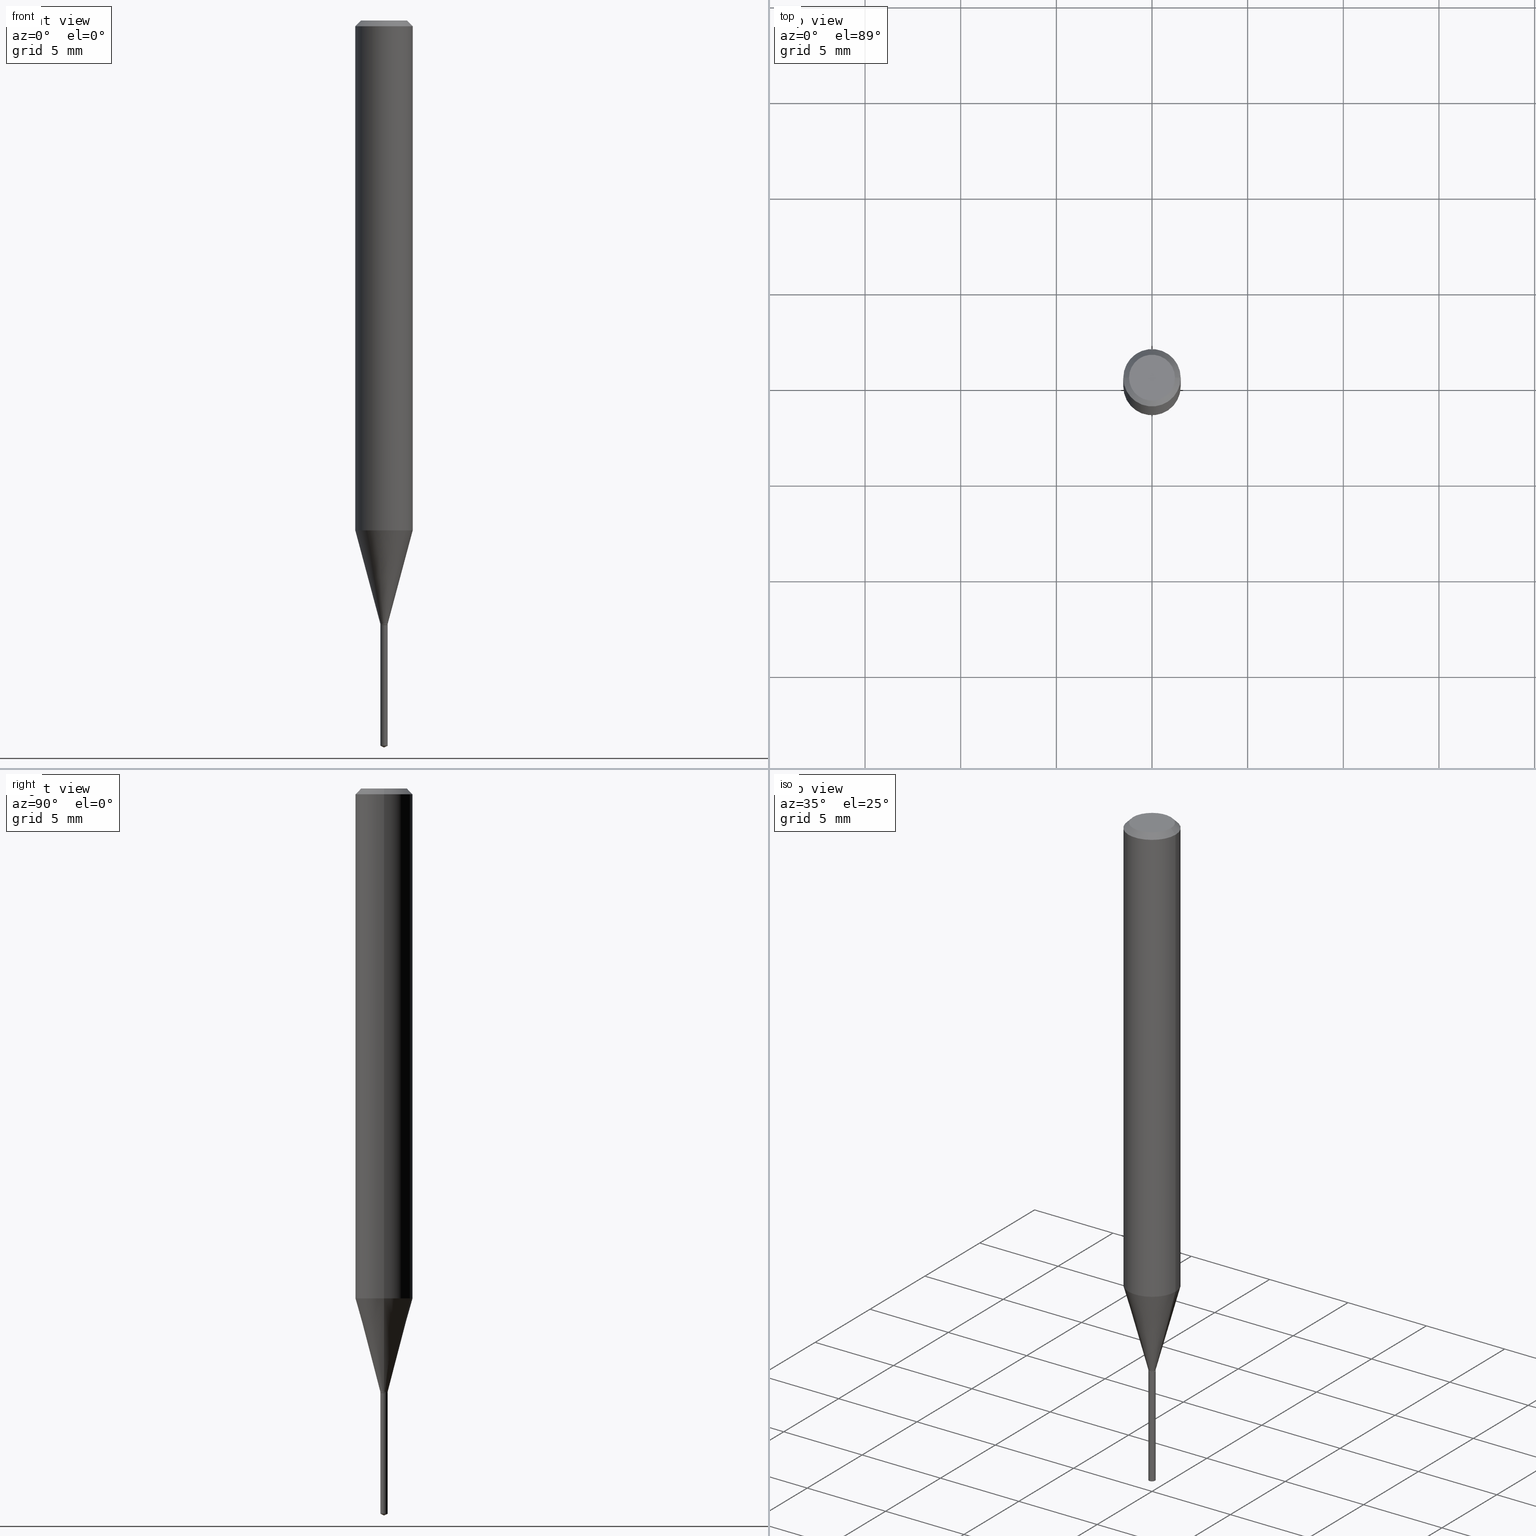
[diagram: canonical four-view strip — front | top / right | iso, engineering-drawing reading convention]
A machine part, canonical four-view strip (front | top / right | iso — engineering-drawing reading convention). The complete STEP part file that produces these views, byte-faithful:
ISO-10303-21;
HEADER;
FILE_DESCRIPTION (( 'STEP AP203' ),
    '1' );
FILE_NAME ('07413.STEP',
    '2024-04-23T21:11:20',
    ( '' ),
    ( '' ),
    'SwSTEP 2.0',
    'SolidWorks 2023',
    '' );
FILE_SCHEMA (( 'CONFIG_CONTROL_DESIGN' ));
ENDSEC;

DATA;
#1 = ORIENTED_EDGE ( 'NONE', *, *, #65, .T. ) ;
#2 = CARTESIAN_POINT ( 'NONE',  ( -9.216901474160064469E-28, 1.328816018163103804E-13, 37.87397874015748300 ) ) ;
#3 = EDGE_CURVE ( 'NONE', #22, #318, #272, .T. ) ;
#4 = AXIS2_PLACEMENT_3D ( 'NONE', #176, #329, #436 ) ;
#5 = DIRECTION ( 'NONE',  ( 1.000000000000000000, -6.982962677686205968E-15, 0.000000000000000000 ) ) ;
#6 = DIRECTION ( 'NONE',  ( 1.000000000000000000, -6.982962677686266711E-15, 0.000000000000000000 ) ) ;
#7 = CARTESIAN_POINT ( 'NONE',  ( 0.007499999999999997120, -5.237222008264698061E-17, 3.657132581846950443E-31 ) ) ;
#8 = EDGE_LOOP ( 'NONE', ( #323, #396 ) ) ;
#9 = FACE_OUTER_BOUND ( 'NONE', #442, .T. ) ;
#10 = ADVANCED_FACE ( 'NONE', ( #332 ), #227, .T. ) ;
#11 = CIRCLE ( 'NONE', #33, 0.007499999999999997120 ) ;
#12 = DIRECTION ( 'NONE',  ( 0.7071067811866169617, -2.468850131082983996E-15, 0.7071067811864780728 ) ) ;
#13 = ORIENTED_EDGE ( 'NONE', *, *, #294, .F. ) ;
#14 = DIRECTION ( 'NONE',  ( 2.433949354103484515E-29, -3.507977849870566318E-15, -1.000000000000000000 ) ) ;
#15 = AXIS2_PLACEMENT_3D ( 'NONE', #342, #69, #116 ) ;
#16 = CARTESIAN_POINT ( 'NONE',  ( 3.042407741774928155E-29, -4.343751933654757151E-15, -1.244099999999999984 ) ) ;
#17 = LINE ( 'NONE', #175, #343 ) ;
#18 = LOCAL_TIME ( 17, 11, 20.00000000000000000, #30 ) ;
#19 = ORIENTED_EDGE ( 'NONE', *, *, #398, .F. ) ;
#20 = PERSON_AND_ORGANIZATION ( #449, #64 ) ;
#21 = ORIENTED_EDGE ( 'NONE', *, *, #270, .F. ) ;
#22 = VERTEX_POINT ( 'NONE', #452 ) ;
#23 = ORIENTED_EDGE ( 'NONE', *, *, #192, .T. ) ;
#24 = ORIENTED_EDGE ( 'NONE', *, *, #87, .T. ) ;
#25 = EDGE_CURVE ( 'NONE', #401, #255, #71, .T. ) ;
#26 = CALENDAR_DATE ( 2024, 23, 4 ) ;
#27 = PERSON_AND_ORGANIZATION ( #449, #64 ) ;
#28 = VECTOR ( 'NONE', #74, 39.37007874015748143 ) ;
#29 = CARTESIAN_POINT ( 'NONE',  ( 8.265746106709734507E-48, -1.180129479067563789E-33, -3.380025165646692144E-19 ) ) ;
#30 = COORDINATED_UNIVERSAL_TIME_OFFSET ( 5, 0, .BEHIND. ) ;
#31 = VERTEX_POINT ( 'NONE', #268 ) ;
#32 = FACE_OUTER_BOUND ( 'NONE', #218, .T. ) ;
#33 = AXIS2_PLACEMENT_3D ( 'NONE', #61, #111, #101 ) ;
#34 = DIRECTION ( 'NONE',  ( -2.438088387897960049E-29, 3.491481338843145188E-15, 1.000000000000000000 ) ) ;
#35 = CARTESIAN_POINT ( 'NONE',  ( -5.237222008261657248E-17, -0.007500000000004344337, -1.244099999999999984 ) ) ;
#36 = CARTESIAN_POINT ( 'NONE',  ( -5.237222008261056358E-17, -0.007500000000005220373, -1.492602692563837374 ) ) ;
#37 = APPROVAL ( #251, 'UNSPECIFIED' ) ;
#38 = DIRECTION ( 'NONE',  ( 1.000000000000000000, -6.982962677686266711E-15, 0.000000000000000000 ) ) ;
#39 = FACE_OUTER_BOUND ( 'NONE', #441, .T. ) ;
#40 = LENGTH_MEASURE_WITH_UNIT ( LENGTH_MEASURE( 0.02539999999999999897 ), #317 );
#41 = CARTESIAN_POINT ( 'NONE',  ( 3.041185007371835914E-29, -4.342006192985336437E-15, -1.243600000000000039 ) ) ;
#42 = DIRECTION ( 'NONE',  ( -6.982962677686266711E-15, -1.000000000000000000, 3.520397390770526445E-15 ) ) ;
#43 = DIRECTION ( 'NONE',  ( 1.000000000000000000, -6.982962677686205968E-15, 0.000000000000000000 ) ) ;
#44 = DIRECTION ( 'NONE',  ( 1.000000000000000000, -6.982962677686266711E-15, 4.876185090822587894E-29 ) ) ;
#45 = VECTOR ( 'NONE', #380, 39.37007874015748143 ) ;
#46 = CONICAL_SURFACE ( 'NONE', #157, 0.05904999999999999832, 0.7853981633974452814 ) ;
#47 = ORIENTED_EDGE ( 'NONE', *, *, #201, .F. ) ;
#48 = VERTEX_POINT ( 'NONE', #371 ) ;
#49 = ORIENTED_EDGE ( 'NONE', *, *, #25, .F. ) ;
#50 = EDGE_CURVE ( 'NONE', #318, #22, #248, .T. ) ;
#51 = ORIENTED_EDGE ( 'NONE', *, *, #65, .F. ) ;
#52 = EDGE_LOOP ( 'NONE', ( #217, #89, #107, #124 ) ) ;
#53 = CC_DESIGN_DATE_AND_TIME_ASSIGNMENT ( #397, #103, ( #149 ) ) ;
#54 = AXIS2_PLACEMENT_3D ( 'NONE', #474, #281, #43 ) ;
#55 = DATE_TIME_ROLE ( 'classification_date' ) ;
#56 = ORIENTED_EDGE ( 'NONE', *, *, #487, .T. ) ;
#57 = EDGE_CURVE ( 'NONE', #478, #399, #309, .T. ) ;
#58 = CALENDAR_DATE ( 2024, 23, 4 ) ;
#59 = APPLICATION_CONTEXT ( 'configuration controlled 3d designs of mechanical parts and assemblies' ) ;
#60 = VECTOR ( 'NONE', #435, 39.37007874015748854 ) ;
#61 = CARTESIAN_POINT ( 'NONE',  ( 3.036783163520702277E-29, -4.335721526575417446E-15, -1.241799999999999793 ) ) ;
#62 = CC_DESIGN_PERSON_AND_ORGANIZATION_ASSIGNMENT ( #85, #382, ( #461 ) ) ;
#63 = FACE_OUTER_BOUND ( 'NONE', #52, .T. ) ;
#64 = ORGANIZATION ( 'UNSPECIFIED', 'UNSPECIFIED', '' ) ;
#65 = EDGE_CURVE ( 'NONE', #472, #31, #422, .T. ) ;
#66 = DIRECTION ( 'NONE',  ( -2.445468806185136597E-29, 3.491481338843145583E-15, 1.000000000000000000 ) ) ;
#67 = CIRCLE ( 'NONE', #106, 0.05904999999999999832 ) ;
#68 = ADVANCED_FACE ( 'NONE', ( #147 ), #303, .T. ) ;
#69 = DIRECTION ( 'NONE',  ( -2.433949354103485076E-29, 3.507977849870565923E-15, 1.000000000000000000 ) ) ;
#70 = DIRECTION ( 'NONE',  ( -2.445468806185136597E-29, 3.491481338843145583E-15, 1.000000000000000000 ) ) ;
#71 = LINE ( 'NONE', #148, #414 ) ;
#72 = CARTESIAN_POINT ( 'NONE',  ( 2.888098660104663766E-31, -4.123439461173779647E-17, -0.01181000000000007044 ) ) ;
#73 = EDGE_CURVE ( 'NONE', #352, #480, #451, .T. ) ;
#74 = DIRECTION ( 'NONE',  ( -2.433949354103485076E-29, 3.507977849870566318E-15, 1.000000000000000000 ) ) ;
#75 = DIRECTION ( 'NONE',  ( -2.445468806185136597E-29, 3.491481338843145583E-15, 1.000000000000000000 ) ) ;
#76 = MANIFOLD_SOLID_BREP ( 'Body-Move/Copy2[1]', #137 ) ;
#77 = AXIS2_PLACEMENT_3D ( 'NONE', #162, #243, #427 ) ;
#78 = FACE_OUTER_BOUND ( 'NONE', #159, .T. ) ;
#79 = CYLINDRICAL_SURFACE ( 'NONE', #77, 0.007500000000000002325 ) ;
#80 = ORIENTED_EDGE ( 'NONE', *, *, #275, .F. ) ;
#81 = EDGE_LOOP ( 'NONE', ( #393, #277, #139, #169 ) ) ;
#82 = CARTESIAN_POINT ( 'NONE',  ( 3.041185007371835914E-29, -4.342006192985336437E-15, -1.243600000000000039 ) ) ;
#83 = AXIS2_PLACEMENT_3D ( 'NONE', #82, #125, #344 ) ;
#84 =( CONVERSION_BASED_UNIT ( 'INCH', #40 ) LENGTH_UNIT ( ) NAMED_UNIT ( #308 ) );
#85 = PERSON_AND_ORGANIZATION ( #449, #64 ) ;
#86 = CIRCLE ( 'NONE', #488, 0.04724000000000000421 ) ;
#87 = EDGE_CURVE ( 'NONE', #215, #203, #113, .T. ) ;
#88 = ORIENTED_EDGE ( 'NONE', *, *, #87, .F. ) ;
#89 = ORIENTED_EDGE ( 'NONE', *, *, #485, .T. ) ;
#90 = APPLICATION_PROTOCOL_DEFINITION ( 'international standard', 'config_control_design', 1994, #59 ) ;
#91 = ORIENTED_EDGE ( 'NONE', *, *, #275, .T. ) ;
#92 = DIRECTION ( 'NONE',  ( 0.2588190451025212391, 1.565188264969622362E-15, 0.9659258262890679791 ) ) ;
#93 = EDGE_CURVE ( 'NONE', #480, #472, #120, .T. ) ;
#94 = DATE_AND_TIME ( #220, #165 ) ;
#95 = VERTEX_POINT ( 'NONE', #490 ) ;
#96 = COORDINATED_UNIVERSAL_TIME_OFFSET ( 5, 0, .BEHIND. ) ;
#97 = CIRCLE ( 'NONE', #288, 0.007499999999999997120 ) ;
#98 = ORIENTED_EDGE ( 'NONE', *, *, #388, .F. ) ;
#99 = CARTESIAN_POINT ( 'NONE',  ( 4.132873053354867254E-48, -5.900647395337818946E-34, -1.690012582823346072E-19 ) ) ;
#100 = COORDINATED_UNIVERSAL_TIME_OFFSET ( 5, 0, .BEHIND. ) ;
#101 = DIRECTION ( 'NONE',  ( 1.000000000000000000, -6.982962677686205968E-15, 0.000000000000000000 ) ) ;
#102 = CC_DESIGN_APPROVAL ( #453, ( #149 ) ) ;
#103 = DATE_TIME_ROLE ( 'creation_date' ) ;
#104 = DIRECTION ( 'NONE',  ( 1.000000000000000000, -6.982962677686333764E-15, 0.000000000000000000 ) ) ;
#105 = DIRECTION ( 'NONE',  ( -1.000000000000000000, 6.982962677686266711E-15, 0.000000000000000000 ) ) ;
#106 = AXIS2_PLACEMENT_3D ( 'NONE', #144, #231, #306 ) ;
#107 = ORIENTED_EDGE ( 'NONE', *, *, #388, .T. ) ;
#108 = DIRECTION ( 'NONE',  ( -2.433949354103485076E-29, 3.507977849870565923E-15, 1.000000000000000000 ) ) ;
#109 = DIRECTION ( 'NONE',  ( -2.445468806185136877E-29, 3.491481338843145188E-15, 1.000000000000000000 ) ) ;
#110 = ADVANCED_FACE ( 'NONE', ( #262 ), #79, .T. ) ;
#111 = DIRECTION ( 'NONE',  ( -2.445468806185136597E-29, 3.491481338843145583E-15, 1.000000000000000000 ) ) ;
#112 = CARTESIAN_POINT ( 'NONE',  ( -0.007499999999999997120, -4.285573154598369775E-15, -1.243600000000000039 ) ) ;
#113 = LINE ( 'NONE', #403, #28 ) ;
#114 = DIRECTION ( 'NONE',  ( 6.439704144417005898E-15, 0.9063077870366488265, 0.4226182617407018838 ) ) ;
#115 = CIRCLE ( 'NONE', #379, 0.04724000000000000421 ) ;
#116 = DIRECTION ( 'NONE',  ( -6.982962677686265922E-15, -1.000000000000000000, 0.000000000000000000 ) ) ;
#117 = CIRCLE ( 'NONE', #54, 0.007499999999999997120 ) ;
#118 = DIRECTION ( 'NONE',  ( -2.445468806185136597E-29, 3.491481338843145583E-15, 1.000000000000000000 ) ) ;
#119 = CARTESIAN_POINT ( 'NONE',  ( 3.042407741774928155E-29, -4.343751933654757151E-15, -1.244099999999999984 ) ) ;
#120 = LINE ( 'NONE', #195, #60 ) ;
#121 = CARTESIAN_POINT ( 'NONE',  ( -0.05904999999999999832, 3.711095515056362547E-16, -0.01181000000000007044 ) ) ;
#122 = CONICAL_SURFACE ( 'NONE', #154, 0.007499999999999997120, 0.2617993877991499629 ) ;
#123 = DIRECTION ( 'NONE',  ( -2.433949354103485076E-29, 3.507977849870565923E-15, 1.000000000000000000 ) ) ;
#124 = ORIENTED_EDGE ( 'NONE', *, *, #423, .F. ) ;
#125 = DIRECTION ( 'NONE',  ( -2.445468806185136597E-29, 3.491481338843145583E-15, 1.000000000000000000 ) ) ;
#126 = ORIENTED_EDGE ( 'NONE', *, *, #130, .T. ) ;
#127 = DIRECTION ( 'NONE',  ( -2.433949354103485076E-29, 3.507977849870565923E-15, 1.000000000000000000 ) ) ;
#128 = ORIENTED_EDGE ( 'NONE', *, *, #50, .F. ) ;
#129 = AXIS2_PLACEMENT_3D ( 'NONE', #224, #362, #105 ) ;
#130 = EDGE_CURVE ( 'NONE', #31, #399, #17, .T. ) ;
#131 = ORIENTED_EDGE ( 'NONE', *, *, #166, .T. ) ;
#132 = APPROVAL_STATUS ( 'not_yet_approved' ) ;
#133 = ORIENTED_EDGE ( 'NONE', *, *, #57, .T. ) ;
#134 = CARTESIAN_POINT ( 'NONE',  ( 3.042407741774928155E-29, -4.343751933654757151E-15, -1.244099999999999984 ) ) ;
#135 = APPROVAL_DATE_TIME ( #254, #37 ) ;
#136 = ADVANCED_FACE ( 'NONE', ( #172 ), #307, .T. ) ;
#137 = CLOSED_SHELL ( 'NONE', ( #475, #458, #406, #110, #408 ) ) ;
#138 = APPROVAL_ROLE ( '' ) ;
#139 = ORIENTED_EDGE ( 'NONE', *, *, #366, .T. ) ;
#140 = AXIS2_PLACEMENT_3D ( 'NONE', #164, #286, #429 ) ;
#141 = COORDINATED_UNIVERSAL_TIME_OFFSET ( 5, 0, .BEHIND. ) ;
#142 = DIRECTION ( 'NONE',  ( -2.445468806185136877E-29, 3.491481338843145188E-15, 1.000000000000000000 ) ) ;
#143 = ORIENTED_EDGE ( 'NONE', *, *, #130, .F. ) ;
#144 = CARTESIAN_POINT ( 'NONE',  ( 2.888098660104663766E-31, -4.123439461173779647E-17, -0.01181000000000007044 ) ) ;
#145 = AXIS2_PLACEMENT_3D ( 'NONE', #454, #466, #415 ) ;
#146 = FACE_OUTER_BOUND ( 'NONE', #355, .T. ) ;
#147 = FACE_OUTER_BOUND ( 'NONE', #171, .T. ) ;
#148 = CARTESIAN_POINT ( 'NONE',  ( -5.237222008261659097E-17, -0.007500000000004346072, -1.244099999999999984 ) ) ;
#150 = DIRECTION ( 'NONE',  ( -2.445468806185136877E-29, 3.491481338843145188E-15, 1.000000000000000000 ) ) ;
#149 = PRODUCT_DEFINITION ( 'UNKNOWN', '', #358, #264 ) ;
#151 = LINE ( 'NONE', #392, #265 ) ;
#152 = DIRECTION ( 'NONE',  ( 1.000000000000000000, -6.982962677686266711E-15, 4.876176775795935793E-29 ) ) ;
#153 = ORIENTED_EDGE ( 'NONE', *, *, #274, .F. ) ;
#154 = AXIS2_PLACEMENT_3D ( 'NONE', #459, #75, #5 ) ;
#155 = AXIS2_PLACEMENT_3D ( 'NONE', #250, #285, #241 ) ;
#156 = CARTESIAN_POINT ( 'NONE',  ( 3.647250709833657186E-29, -5.215493874801893325E-15, -1.492602692563837374 ) ) ;
#157 = AXIS2_PLACEMENT_3D ( 'NONE', #470, #247, #467 ) ;
#158 = EDGE_CURVE ( 'NONE', #351, #478, #115, .T. ) ;
#159 = EDGE_LOOP ( 'NONE', ( #242, #328, #238, #51 ) ) ;
#160 = AXIS2_PLACEMENT_3D ( 'NONE', #245, #70, #6 ) ;
#161 = FACE_OUTER_BOUND ( 'NONE', #319, .T. ) ;
#162 = CARTESIAN_POINT ( 'NONE',  ( 3.042407741774928155E-29, -4.343751933654757151E-15, -1.244099999999999984 ) ) ;
#163 = CC_DESIGN_DATE_AND_TIME_ASSIGNMENT ( #94, #55, ( #416 ) ) ;
#164 = CARTESIAN_POINT ( 'NONE',  ( 0.000000000000000000, 0.000000000000000000, 0.000000000000000000 ) ) ;
#165 = LOCAL_TIME ( 17, 11, 20.00000000000000000, #100 ) ;
#166 = EDGE_CURVE ( 'NONE', #472, #448, #213, .T. ) ;
#167 =( NAMED_UNIT ( * ) PLANE_ANGLE_UNIT ( ) SI_UNIT ( $, .RADIAN. ) );
#168 = CARTESIAN_POINT ( 'NONE',  ( -0.05905000000000006077, 4.195754854663395916E-16, -2.904631170795524694E-30 ) ) ;
#169 = ORIENTED_EDGE ( 'NONE', *, *, #485, .F. ) ;
#170 = APPROVAL_ROLE ( '' ) ;
#171 = EDGE_LOOP ( 'NONE', ( #23, #131, #354, #143 ) ) ;
#172 = FACE_OUTER_BOUND ( 'NONE', #81, .T. ) ;
#173 = ORIENTED_EDGE ( 'NONE', *, *, #197, .F. ) ;
#174 = ORIENTED_EDGE ( 'NONE', *, *, #289, .F. ) ;
#175 = CARTESIAN_POINT ( 'NONE',  ( 0.05905000000000006077, -4.123439461173744764E-16, 2.879382386107503023E-30 ) ) ;
#176 = CARTESIAN_POINT ( 'NONE',  ( 2.566306220429153348E-29, -3.664005141150482080E-15, -1.049412780869824147 ) ) ;
#177 = PERSON_AND_ORGANIZATION_ROLE ( 'design_supplier' ) ;
#178 = DIRECTION ( 'NONE',  ( -2.445468806185136597E-29, 3.491481338843145583E-15, 1.000000000000000000 ) ) ;
#179 = ORIENTED_EDGE ( 'NONE', *, *, #366, .F. ) ;
#180 = AXIS2_PLACEMENT_3D ( 'NONE', #360, #178, #104 ) ;
#181 = SECURITY_CLASSIFICATION_LEVEL ( 'unclassified' ) ;
#182 = ORIENTED_EDGE ( 'NONE', *, *, #158, .F. ) ;
#183 =( GEOMETRIC_REPRESENTATION_CONTEXT ( 3 ) GLOBAL_UNCERTAINTY_ASSIGNED_CONTEXT ( ( #333 ) ) GLOBAL_UNIT_ASSIGNED_CONTEXT ( ( #84, #167, #200 ) ) REPRESENTATION_CONTEXT ( 'NONE', 'WORKASPACE' ) );
#184 = ADVANCED_FACE ( 'NONE', ( #447 ), #216, .T. ) ;
#185 = DIRECTION ( 'NONE',  ( -2.445468806185136597E-29, 3.491481338843145583E-15, 1.000000000000000000 ) ) ;
#186 = DIRECTION ( 'NONE',  ( -6.982962677686266711E-15, -1.000000000000000000, 3.520397390770526445E-15 ) ) ;
#187 = VECTOR ( 'NONE', #142, 39.37007874015748143 ) ;
#188 = DIRECTION ( 'NONE',  ( 1.000000000000000000, -6.982962677686265922E-15, 4.876176775795935793E-29 ) ) ;
#189 = CARTESIAN_POINT ( 'NONE',  ( 3.042407741774928155E-29, -4.343751933654757151E-15, -1.244099999999999984 ) ) ;
#190 = CARTESIAN_POINT ( 'NONE',  ( 0.000000000000000000, 0.000000000000000000, 0.000000000000000000 ) ) ;
#191 = APPROVAL_PERSON_ORGANIZATION ( #357, #37, #298 ) ;
#192 = EDGE_CURVE ( 'NONE', #31, #472, #404, .T. ) ;
#193 = DIRECTION ( 'NONE',  ( 1.000000000000000000, -6.982962677686333764E-15, 0.000000000000000000 ) ) ;
#194 = PLANE ( 'NONE',  #327 ) ;
#195 = CARTESIAN_POINT ( 'NONE',  ( -0.007499999999999997120, -4.282430821393410279E-15, -1.241799999999999793 ) ) ;
#196 = VECTOR ( 'NONE', #340, 39.37007874015748143 ) ;
#197 = EDGE_CURVE ( 'NONE', #345, #401, #325, .T. ) ;
#198 = MECHANICAL_CONTEXT ( 'NONE', #59, 'mechanical' ) ;
#199 = VECTOR ( 'NONE', #205, 39.37007874015748143 ) ;
#200 =( NAMED_UNIT ( * ) SI_UNIT ( $, .STERADIAN. ) SOLID_ANGLE_UNIT ( ) );
#201 = EDGE_CURVE ( 'NONE', #48, #31, #151, .T. ) ;
#202 = AXIS2_PLACEMENT_3D ( 'NONE', #16, #127, #311 ) ;
#203 = VERTEX_POINT ( 'NONE', #321 ) ;
#204 = ORIENTED_EDGE ( 'NONE', *, *, #398, .T. ) ;
#205 = DIRECTION ( 'NONE',  ( 0.7071067811865453523, -7.319954787623248157E-15, -0.7071067811865496822 ) ) ;
#206 = APPLICATION_PROTOCOL_DEFINITION ( 'international standard', 'config_control_design', 1994, #446 ) ;
#207 = CC_DESIGN_PERSON_AND_ORGANIZATION_ASSIGNMENT ( #439, #177, ( #358 ) ) ;
#208 = VECTOR ( 'NONE', #114, 39.37007874015748143 ) ;
#209 = AXIS2_PLACEMENT_3D ( 'NONE', #221, #489, #484 ) ;
#210 = CONICAL_SURFACE ( 'NONE', #465, 84.42940631927260142, 1.134464013796308013 ) ;
#211 = CARTESIAN_POINT ( 'NONE',  ( 3.641431628674223535E-29, -5.248285661191353441E-15, -1.496099999999999985 ) ) ;
#212 = FACE_OUTER_BOUND ( 'NONE', #428, .T. ) ;
#213 = LINE ( 'NONE', #168, #187 ) ;
#214 = DATE_AND_TIME ( #225, #296 ) ;
#215 = VERTEX_POINT ( 'NONE', #324 ) ;
#216 = CONICAL_SURFACE ( 'NONE', #129, 0.05904999999999999832, 0.7853981633974452814 ) ;
#217 = ORIENTED_EDGE ( 'NONE', *, *, #73, .F. ) ;
#218 = EDGE_LOOP ( 'NONE', ( #128, #421 ) ) ;
#219 = ADVANCED_FACE ( 'NONE', ( #365 ), #230, .F. ) ;
#220 = CALENDAR_DATE ( 2024, 23, 4 ) ;
#221 = CARTESIAN_POINT ( 'NONE',  ( 3.042407741774928155E-29, -4.343751933654757151E-15, -1.244099999999999984 ) ) ;
#222 = DIRECTION ( 'NONE',  ( -2.445468806185136877E-29, 3.491481338843145188E-15, 1.000000000000000000 ) ) ;
#223 = EDGE_CURVE ( 'NONE', #478, #351, #86, .T. ) ;
#224 = CARTESIAN_POINT ( 'NONE',  ( 2.888098660104663766E-31, -4.123439461173779647E-17, -0.01181000000000007044 ) ) ;
#225 = CALENDAR_DATE ( 2024, 23, 4 ) ;
#226 = AXIS2_PLACEMENT_3D ( 'NONE', #72, #369, #38 ) ;
#227 = CONICAL_SURFACE ( 'NONE', #180, 0.006999999999999999278, 0.7853981633975465337 ) ;
#228 = ORIENTED_EDGE ( 'NONE', *, *, #50, .T. ) ;
#229 = CARTESIAN_POINT ( 'NONE',  ( -0.04724000000000000421, 3.504923541997677355E-16, -3.380025165670481712E-19 ) ) ;
#230 = PLANE ( 'NONE',  #283 ) ;
#231 = DIRECTION ( 'NONE',  ( -2.445468806185136597E-29, 3.491481338843145583E-15, 1.000000000000000000 ) ) ;
#232 = PRODUCT_DEFINITION_SHAPE ( 'NONE', 'NONE',  #149 ) ;
#233 = CIRCLE ( 'NONE', #15, 0.007499999999999999722 ) ;
#234 = DIRECTION ( 'NONE',  ( -2.445468806185136597E-29, 3.491481338843145583E-15, 1.000000000000000000 ) ) ;
#235 = CARTESIAN_POINT ( 'NONE',  ( 0.006999999999999999278, -4.392632672398561618E-15, -1.244099999999999984 ) ) ;
#236 = ADVANCED_BREP_SHAPE_REPRESENTATION ( '07413', ( #76, #410, #140 ), #183 ) ;
#237 = LINE ( 'NONE', #367, #208 ) ;
#238 = ORIENTED_EDGE ( 'NONE', *, *, #201, .T. ) ;
#239 = CARTESIAN_POINT ( 'NONE',  ( 0.000000000000000000, 0.000000000000000000, 0.000000000000000000 ) ) ;
#240 = CIRCLE ( 'NONE', #145, 0.007499999999999999722 ) ;
#241 = DIRECTION ( 'NONE',  ( 1.000000000000000000, -6.982962677686205968E-15, 0.000000000000000000 ) ) ;
#242 = ORIENTED_EDGE ( 'NONE', *, *, #93, .F. ) ;
#243 = DIRECTION ( 'NONE',  ( -2.433949354103485076E-29, 3.507977849870565923E-15, 1.000000000000000000 ) ) ;
#244 = LINE ( 'NONE', #315, #45 ) ;
#245 = CARTESIAN_POINT ( 'NONE',  ( 2.566306220429153348E-29, -3.664005141150482080E-15, -1.049412780869824147 ) ) ;
#246 = CIRCLE ( 'NONE', #338, 0.007500000000000004059 ) ;
#247 = DIRECTION ( 'NONE',  ( 2.445468806185136597E-29, -3.491481338843145583E-15, -1.000000000000000000 ) ) ;
#248 = CIRCLE ( 'NONE', #407, 0.006999999999999999278 ) ;
#249 = ORIENTED_EDGE ( 'NONE', *, *, #289, .T. ) ;
#250 = CARTESIAN_POINT ( 'NONE',  ( 3.036783163520702277E-29, -4.335721526575417446E-15, -1.241799999999999793 ) ) ;
#251 = APPROVAL_STATUS ( 'not_yet_approved' ) ;
#252 = EDGE_LOOP ( 'NONE', ( #91, #445, #21, #98 ) ) ;
#253 = PERSON_AND_ORGANIZATION_ROLE ( 'creator' ) ;
#254 = DATE_AND_TIME ( #26, #444 ) ;
#255 = VERTEX_POINT ( 'NONE', #35 ) ;
#256 = CC_DESIGN_PERSON_AND_ORGANIZATION_ASSIGNMENT ( #295, #481, ( #416 ) ) ;
#257 = ORIENTED_EDGE ( 'NONE', *, *, #25, .T. ) ;
#258 = DIRECTION ( 'NONE',  ( -1.000000000000000000, 6.982962677686265922E-15, -4.876176775795935793E-29 ) ) ;
#259 = CC_DESIGN_SECURITY_CLASSIFICATION ( #416, ( #358 ) ) ;
#260 = PERSON_AND_ORGANIZATION ( #449, #64 ) ;
#261 = CONICAL_SURFACE ( 'NONE', #469, 84.42940631927260142, 1.134464013796308013 ) ;
#262 = FACE_OUTER_BOUND ( 'NONE', #292, .T. ) ;
#263 = CARTESIAN_POINT ( 'NONE',  ( -0.007499999999999997120, 5.329070518200749348E-17, -3.689201317691177953E-31 ) ) ;
#264 = DESIGN_CONTEXT ( 'detailed design', #446, 'design' ) ;
#265 = VECTOR ( 'NONE', #92, 39.37007874015748854 ) ;
#266 = LINE ( 'NONE', #121, #196 ) ;
#267 = DIRECTION ( 'NONE',  ( 1.000000000000000000, -6.982962677686266711E-15, 4.876176775795935793E-29 ) ) ;
#268 = CARTESIAN_POINT ( 'NONE',  ( 0.05905000000000011628, -4.076349087267857001E-15, -1.049412780869824147 ) ) ;
#269 = DIRECTION ( 'NONE',  ( -6.982962677686265922E-15, -1.000000000000000000, 0.000000000000000000 ) ) ;
#270 = EDGE_CURVE ( 'NONE', #48, #480, #11, .T. ) ;
#271 = CARTESIAN_POINT ( 'NONE',  ( 0.000000000000000000, 0.000000000000000000, 0.000000000000000000 ) ) ;
#272 = CIRCLE ( 'NONE', #209, 0.006999999999999999278 ) ;
#273 = CIRCLE ( 'NONE', #226, 0.05904999999999999832 ) ;
#274 = EDGE_CURVE ( 'NONE', #351, #448, #266, .T. ) ;
#275 = EDGE_CURVE ( 'NONE', #95, #352, #97, .T. ) ;
#276 = CYLINDRICAL_SURFACE ( 'NONE', #413, 0.05905000000000006077 ) ;
#277 = ORIENTED_EDGE ( 'NONE', *, *, #3, .T. ) ;
#278 = DIRECTION ( 'NONE',  ( -6.328713451373349657E-15, -0.9063077870366458288, 0.4226182617407081565 ) ) ;
#279 = EDGE_CURVE ( 'NONE', #215, #401, #479, .T. ) ;
#280 = CARTESIAN_POINT ( 'NONE',  ( 3.647250709833657186E-29, -5.215493874801893325E-15, -1.492602692563837374 ) ) ;
#281 = DIRECTION ( 'NONE',  ( -2.445468806185136597E-29, 3.491481338843145583E-15, 1.000000000000000000 ) ) ;
#282 = ORIENTED_EDGE ( 'NONE', *, *, #279, .F. ) ;
#283 = AXIS2_PLACEMENT_3D ( 'NONE', #99, #368, #258 ) ;
#284 = FACE_OUTER_BOUND ( 'NONE', #390, .T. ) ;
#285 = DIRECTION ( 'NONE',  ( -2.445468806185136597E-29, 3.491481338843145583E-15, 1.000000000000000000 ) ) ;
#286 = DIRECTION ( 'NONE',  ( 0.000000000000000000, 0.000000000000000000, 1.000000000000000000 ) ) ;
#287 = ORIENTED_EDGE ( 'NONE', *, *, #375, .T. ) ;
#288 = AXIS2_PLACEMENT_3D ( 'NONE', #41, #419, #339 ) ;
#289 = EDGE_CURVE ( 'NONE', #448, #399, #67, .T. ) ;
#290 = COORDINATED_UNIVERSAL_TIME_OFFSET ( 5, 0, .BEHIND. ) ;
#291 = ORIENTED_EDGE ( 'NONE', *, *, #166, .F. ) ;
#292 = EDGE_LOOP ( 'NONE', ( #88, #326, #257, #19 ) ) ;
#293 = CC_DESIGN_PERSON_AND_ORGANIZATION_ASSIGNMENT ( #27, #253, ( #358 ) ) ;
#294 = EDGE_CURVE ( 'NONE', #255, #203, #240, .T. ) ;
#295 = PERSON_AND_ORGANIZATION ( #449, #64 ) ;
#296 = LOCAL_TIME ( 17, 11, 20.00000000000000000, #290 ) ;
#297 = ADVANCED_FACE ( 'NONE', ( #63 ), #450, .T. ) ;
#298 = APPROVAL_ROLE ( '' ) ;
#299 = DIRECTION ( 'NONE',  ( -2.433949354103485076E-29, 3.507977849870565923E-15, 1.000000000000000000 ) ) ;
#300 = AXIS2_PLACEMENT_3D ( 'NONE', #455, #185, #464 ) ;
#301 = CLOSED_SHELL ( 'NONE', ( #10, #443, #68, #330, #383, #297, #468, #402, #184, #219, #384, #136 ) ) ;
#302 = CARTESIAN_POINT ( 'NONE',  ( 3.641431628674223535E-29, -5.248285661191353441E-15, -1.496099999999999985 ) ) ;
#303 = CYLINDRICAL_SURFACE ( 'NONE', #300, 0.05905000000000006077 ) ;
#304 = DIRECTION ( 'NONE',  ( -2.433949354103485076E-29, 3.507977849870566318E-15, 1.000000000000000000 ) ) ;
#305 = DIRECTION ( 'NONE',  ( -6.982962677686265922E-15, -1.000000000000000000, 0.000000000000000000 ) ) ;
#306 = DIRECTION ( 'NONE',  ( 1.000000000000000000, -6.982962677686266711E-15, 0.000000000000000000 ) ) ;
#307 = CONICAL_SURFACE ( 'NONE', #353, 0.006999999999999999278, 0.7853981633975465337 ) ;
#308 = DIMENSIONAL_EXPONENTS ( 1.000000000000000000, 0.000000000000000000, 0.000000000000000000, 0.000000000000000000, 0.000000000000000000, 0.000000000000000000, 0.000000000000000000 ) ;
#309 = LINE ( 'NONE', #418, #199 ) ;
#310 = CARTESIAN_POINT ( 'NONE',  ( 0.05904999999999999832, -4.535783407291118600E-16, -0.01181000000000007044 ) ) ;
#311 = DIRECTION ( 'NONE',  ( -6.982962677686265922E-15, -1.000000000000000000, 0.000000000000000000 ) ) ;
#312 = CARTESIAN_POINT ( 'NONE',  ( 0.04724000000000000421, -3.852183633974369345E-16, -3.380025165621689721E-19 ) ) ;
#313 = ORIENTED_EDGE ( 'NONE', *, *, #294, .T. ) ;
#314 = ORIENTED_EDGE ( 'NONE', *, *, #223, .F. ) ;
#315 = CARTESIAN_POINT ( 'NONE',  ( -0.006999999999999999278, -4.294013942151550094E-15, -1.244099999999999984 ) ) ;
#316 = CARTESIAN_POINT ( 'NONE',  ( -0.05905000000000011628, -3.244429655684142193E-15, -1.049412780869824147 ) ) ;
#317 =( LENGTH_UNIT ( ) NAMED_UNIT ( * ) SI_UNIT ( $, .METRE. ) );
#318 = VERTEX_POINT ( 'NONE', #335 ) ;
#319 = EDGE_LOOP ( 'NONE', ( #173, #395, #473 ) ) ;
#320 = DATE_AND_TIME ( #58, #349 ) ;
#321 = CARTESIAN_POINT ( 'NONE',  ( 5.329070518204405225E-17, 0.007499999999995655975, -1.244099999999999984 ) ) ;
#322 = ORIENTED_EDGE ( 'NONE', *, *, #274, .T. ) ;
#323 = ORIENTED_EDGE ( 'NONE', *, *, #158, .T. ) ;
#324 = CARTESIAN_POINT ( 'NONE',  ( 5.329070518204401527E-17, 0.007499999999994790348, -1.492602692563837374 ) ) ;
#325 = LINE ( 'NONE', #211, #462 ) ;
#326 = ORIENTED_EDGE ( 'NONE', *, *, #279, .T. ) ;
#327 = AXIS2_PLACEMENT_3D ( 'NONE', #412, #34, #188 ) ;
#328 = ORIENTED_EDGE ( 'NONE', *, *, #423, .T. ) ;
#329 = DIRECTION ( 'NONE',  ( -2.445468806185136597E-29, 3.491481338843145583E-15, 1.000000000000000000 ) ) ;
#330 = ADVANCED_FACE ( 'NONE', ( #146 ), #122, .T. ) ;
#331 = APPROVAL_STATUS ( 'not_yet_approved' ) ;
#332 = FACE_OUTER_BOUND ( 'NONE', #334, .T. ) ;
#333 = UNCERTAINTY_MEASURE_WITH_UNIT (LENGTH_MEASURE( 1.000000000000000082E-05 ), #84, 'distance_accuracy_value', 'NONE');
#334 = EDGE_LOOP ( 'NONE', ( #228, #56, #80, #179 ) ) ;
#335 = CARTESIAN_POINT ( 'NONE',  ( 0.006999999999999999278, -4.392632672398561618E-15, -1.244099999999999984 ) ) ;
#336 = EDGE_CURVE ( 'NONE', #345, #215, #237, .T. ) ;
#337 = FACE_OUTER_BOUND ( 'NONE', #389, .T. ) ;
#338 = AXIS2_PLACEMENT_3D ( 'NONE', #156, #108, #305 ) ;
#339 = DIRECTION ( 'NONE',  ( 1.000000000000000000, -6.982962677686270655E-15, 0.000000000000000000 ) ) ;
#340 = DIRECTION ( 'NONE',  ( -0.7071067811865453523, 2.468850131082234184E-15, -0.7071067811865496822 ) ) ;
#341 = LINE ( 'NONE', #7, #471 ) ;
#342 = CARTESIAN_POINT ( 'NONE',  ( 3.042407741774928155E-29, -4.343751933654757151E-15, -1.244099999999999984 ) ) ;
#343 = VECTOR ( 'NONE', #222, 39.37007874015748143 ) ;
#344 = DIRECTION ( 'NONE',  ( 1.000000000000000000, -6.982962677686270655E-15, 0.000000000000000000 ) ) ;
#345 = VERTEX_POINT ( 'NONE', #302 ) ;
#346 = CYLINDRICAL_SURFACE ( 'NONE', #202, 0.007500000000000002325 ) ;
#347 = PRODUCT_RELATED_PRODUCT_CATEGORY ( 'detail', '', ( #461 ) ) ;
#348 = ORIENTED_EDGE ( 'NONE', *, *, #192, .F. ) ;
#349 = LOCAL_TIME ( 17, 11, 20.00000000000000000, #96 ) ;
#350 = CARTESIAN_POINT ( 'NONE',  ( -9.216901474160064469E-28, 1.328816018163103804E-13, 37.87397874015748300 ) ) ;
#351 = VERTEX_POINT ( 'NONE', #229 ) ;
#352 = VERTEX_POINT ( 'NONE', #112 ) ;
#353 = AXIS2_PLACEMENT_3D ( 'NONE', #134, #482, #361 ) ;
#354 = ORIENTED_EDGE ( 'NONE', *, *, #359, .F. ) ;
#355 = EDGE_LOOP ( 'NONE', ( #437, #425, #348, #47 ) ) ;
#356 = CC_DESIGN_PERSON_AND_ORGANIZATION_ASSIGNMENT ( #260, #433, ( #149 ) ) ;
#357 = PERSON_AND_ORGANIZATION ( #449, #64 ) ;
#358 = PRODUCT_DEFINITION_FORMATION_WITH_SPECIFIED_SOURCE ( 'ANY', '', #461, .NOT_KNOWN. ) ;
#359 = EDGE_CURVE ( 'NONE', #399, #448, #273, .T. ) ;
#360 = CARTESIAN_POINT ( 'NONE',  ( 3.042407741774928155E-29, -4.343751933654757151E-15, -1.244099999999999984 ) ) ;
#361 = DIRECTION ( 'NONE',  ( 1.000000000000000000, -6.982962677686333764E-15, 0.000000000000000000 ) ) ;
#362 = DIRECTION ( 'NONE',  ( 2.445468806185136597E-29, -3.491481338843145583E-15, -1.000000000000000000 ) ) ;
#363 = AXIS2_PLACEMENT_3D ( 'NONE', #280, #411, #269 ) ;
#364 = APPROVAL_DATE_TIME ( #214, #453 ) ;
#365 = FACE_OUTER_BOUND ( 'NONE', #8, .T. ) ;
#366 = EDGE_CURVE ( 'NONE', #318, #95, #377, .T. ) ;
#367 = CARTESIAN_POINT ( 'NONE',  ( 3.670345667395058439E-29, -5.207239042452925869E-15, -1.496099999999999985 ) ) ;
#368 = DIRECTION ( 'NONE',  ( 2.438088387897960049E-29, -3.491481338843145188E-15, -1.000000000000000000 ) ) ;
#369 = DIRECTION ( 'NONE',  ( -2.445468806185136597E-29, 3.491481338843145583E-15, 1.000000000000000000 ) ) ;
#370 = AXIS2_PLACEMENT_3D ( 'NONE', #271, #118, #374 ) ;
#371 = CARTESIAN_POINT ( 'NONE',  ( 0.007499999999999997120, -4.388093746658064131E-15, -1.241799999999999793 ) ) ;
#372 = APPROVAL ( #331, 'UNSPECIFIED' ) ;
#373 = DIRECTION ( 'NONE',  ( 1.000000000000000000, -6.982962677686266711E-15, 4.876185090822587894E-29 ) ) ;
#374 = DIRECTION ( 'NONE',  ( 1.000000000000000000, -6.982962677686266711E-15, 4.876176775795935793E-29 ) ) ;
#375 = EDGE_CURVE ( 'NONE', #401, #215, #246, .T. ) ;
#376 = CC_DESIGN_APPROVAL ( #372, ( #358 ) ) ;
#377 = LINE ( 'NONE', #235, #438 ) ;
#378 = DIRECTION ( 'NONE',  ( -2.445468806185136597E-29, 3.491481338843145583E-15, 1.000000000000000000 ) ) ;
#379 = AXIS2_PLACEMENT_3D ( 'NONE', #434, #387, #44 ) ;
#380 = DIRECTION ( 'NONE',  ( -0.7071067811866169617, 7.493145998870605018E-15, 0.7071067811864780728 ) ) ;
#381 = ORIENTED_EDGE ( 'NONE', *, *, #197, .T. ) ;
#382 = PERSON_AND_ORGANIZATION_ROLE ( 'design_owner' ) ;
#383 = ADVANCED_FACE ( 'NONE', ( #409 ), #463, .T. ) ;
#384 = ADVANCED_FACE ( 'NONE', ( #32 ), #194, .F. ) ;
#385 = VECTOR ( 'NONE', #109, 39.37007874015748143 ) ;
#386 = DIRECTION ( 'NONE',  ( 6.982962677686265922E-15, 1.000000000000000000, -3.507977849870566318E-15 ) ) ;
#387 = DIRECTION ( 'NONE',  ( -2.445468806185136597E-29, 3.491481338843145583E-15, 1.000000000000000000 ) ) ;
#388 = EDGE_CURVE ( 'NONE', #95, #48, #341, .T. ) ;
#389 = EDGE_LOOP ( 'NONE', ( #313, #204 ) ) ;
#390 = EDGE_LOOP ( 'NONE', ( #287, #24, #13, #49 ) ) ;
#391 = EDGE_LOOP ( 'NONE', ( #405, #182, #322, #249 ) ) ;
#392 = CARTESIAN_POINT ( 'NONE',  ( 0.007499999999999997120, -4.388093746658064131E-15, -1.241799999999999793 ) ) ;
#393 = ORIENTED_EDGE ( 'NONE', *, *, #487, .F. ) ;
#394 = SHAPE_DEFINITION_REPRESENTATION ( #232, #236 ) ;
#395 = ORIENTED_EDGE ( 'NONE', *, *, #336, .T. ) ;
#396 = ORIENTED_EDGE ( 'NONE', *, *, #223, .T. ) ;
#397 = DATE_AND_TIME ( #431, #18 ) ;
#398 = EDGE_CURVE ( 'NONE', #203, #255, #233, .T. ) ;
#399 = VERTEX_POINT ( 'NONE', #310 ) ;
#400 = APPROVAL_DATE_TIME ( #320, #372 ) ;
#401 = VERTEX_POINT ( 'NONE', #36 ) ;
#402 = ADVANCED_FACE ( 'NONE', ( #9 ), #276, .T. ) ;
#403 = CARTESIAN_POINT ( 'NONE',  ( 5.329070518203794474E-17, 0.007499999999995657710, -1.244099999999999984 ) ) ;
#404 = CIRCLE ( 'NONE', #4, 0.05905000000000011628 ) ;
#405 = ORIENTED_EDGE ( 'NONE', *, *, #57, .F. ) ;
#406 = ADVANCED_FACE ( 'NONE', ( #39 ), #210, .T. ) ;
#407 = AXIS2_PLACEMENT_3D ( 'NONE', #189, #456, #193 ) ;
#408 = ADVANCED_FACE ( 'NONE', ( #337 ), #477, .F. ) ;
#409 = FACE_OUTER_BOUND ( 'NONE', #252, .T. ) ;
#410 = MANIFOLD_SOLID_BREP ( 'Body-Move/Copy2[2]', #301 ) ;
#411 = DIRECTION ( 'NONE',  ( -2.433949354103485076E-29, 3.507977849870565923E-15, 1.000000000000000000 ) ) ;
#412 = CARTESIAN_POINT ( 'NONE',  ( 3.042407741774928155E-29, -4.343751933654757151E-15, -1.244099999999999984 ) ) ;
#413 = AXIS2_PLACEMENT_3D ( 'NONE', #239, #378, #267 ) ;
#414 = VECTOR ( 'NONE', #304, 39.37007874015748143 ) ;
#415 = DIRECTION ( 'NONE',  ( -6.982962677686265922E-15, -1.000000000000000000, 0.000000000000000000 ) ) ;
#416 = SECURITY_CLASSIFICATION ( '', '', #181 ) ;
#417 = ORIENTED_EDGE ( 'NONE', *, *, #336, .F. ) ;
#418 = CARTESIAN_POINT ( 'NONE',  ( 0.05904999999999999832, -4.463468013801466955E-16, -0.01181000000000007044 ) ) ;
#419 = DIRECTION ( 'NONE',  ( -2.445468806185136597E-29, 3.491481338843145583E-15, 1.000000000000000000 ) ) ;
#420 = CARTESIAN_POINT ( 'NONE',  ( -0.05904999999999999832, -1.433044282414769623E-15, -0.01181000000000007044 ) ) ;
#421 = ORIENTED_EDGE ( 'NONE', *, *, #3, .F. ) ;
#422 = CIRCLE ( 'NONE', #160, 0.05905000000000011628 ) ;
#423 = EDGE_CURVE ( 'NONE', #480, #48, #117, .T. ) ;
#424 = CARTESIAN_POINT ( 'NONE',  ( -0.007499999999999997120, -4.285573154598369775E-15, -1.241799999999999793 ) ) ;
#425 = ORIENTED_EDGE ( 'NONE', *, *, #93, .T. ) ;
#426 = APPROVAL_PERSON_ORGANIZATION ( #486, #453, #138 ) ;
#427 = DIRECTION ( 'NONE',  ( -6.982962677686265922E-15, -1.000000000000000000, 0.000000000000000000 ) ) ;
#428 = EDGE_LOOP ( 'NONE', ( #314, #133, #432, #153 ) ) ;
#429 = DIRECTION ( 'NONE',  ( 1.000000000000000000, 0.000000000000000000, 0.000000000000000000 ) ) ;
#430 = AXIS2_PLACEMENT_3D ( 'NONE', #190, #66, #152 ) ;
#431 = CALENDAR_DATE ( 2024, 23, 4 ) ;
#432 = ORIENTED_EDGE ( 'NONE', *, *, #359, .T. ) ;
#433 = PERSON_AND_ORGANIZATION_ROLE ( 'creator' ) ;
#434 = CARTESIAN_POINT ( 'NONE',  ( 8.265746106709734507E-48, -1.180129479067563789E-33, -3.380025165646692144E-19 ) ) ;
#435 = DIRECTION ( 'NONE',  ( -0.2588190451025212391, 5.211531920934549464E-15, 0.9659258262890679791 ) ) ;
#436 = DIRECTION ( 'NONE',  ( 1.000000000000000000, -6.982962677686266711E-15, 0.000000000000000000 ) ) ;
#437 = ORIENTED_EDGE ( 'NONE', *, *, #270, .T. ) ;
#438 = VECTOR ( 'NONE', #12, 39.37007874015748143 ) ;
#439 = PERSON_AND_ORGANIZATION ( #449, #64 ) ;
#440 = AXIS2_PLACEMENT_3D ( 'NONE', #119, #14, #386 ) ;
#441 = EDGE_LOOP ( 'NONE', ( #417, #381, #282 ) ) ;
#442 = EDGE_LOOP ( 'NONE', ( #291, #1, #126, #174 ) ) ;
#443 = ADVANCED_FACE ( 'NONE', ( #212 ), #46, .T. ) ;
#444 = LOCAL_TIME ( 17, 11, 20.00000000000000000, #141 ) ;
#445 = ORIENTED_EDGE ( 'NONE', *, *, #73, .T. ) ;
#446 = APPLICATION_CONTEXT ( 'configuration controlled 3d designs of mechanical parts and assemblies' ) ;
#447 = FACE_OUTER_BOUND ( 'NONE', #391, .T. ) ;
#448 = VERTEX_POINT ( 'NONE', #420 ) ;
#449 = PERSON ( 'UNSPECIFIED', 'UNSPECIFIED', 'UNSPECIFIED', ('UNSPECIFIED'), ('UNSPECIFIED'), ('UNSPECIFIED') ) ;
#450 = CYLINDRICAL_SURFACE ( 'NONE', #430, 0.007499999999999997120 ) ;
#451 = LINE ( 'NONE', #263, #385 ) ;
#452 = CARTESIAN_POINT ( 'NONE',  ( -0.006999999999999999278, -4.291364714977439682E-15, -1.244099999999999984 ) ) ;
#454 = CARTESIAN_POINT ( 'NONE',  ( 3.042407741774928155E-29, -4.343751933654757151E-15, -1.244099999999999984 ) ) ;
#453 = APPROVAL ( #132, 'UNSPECIFIED' ) ;
#455 = CARTESIAN_POINT ( 'NONE',  ( 0.000000000000000000, 0.000000000000000000, 0.000000000000000000 ) ) ;
#456 = DIRECTION ( 'NONE',  ( -2.445468806185136597E-29, 3.491481338843145583E-15, 1.000000000000000000 ) ) ;
#457 = APPROVAL_PERSON_ORGANIZATION ( #20, #372, #170 ) ;
#458 = ADVANCED_FACE ( 'NONE', ( #161 ), #261, .T. ) ;
#459 = CARTESIAN_POINT ( 'NONE',  ( 3.036783163520702277E-29, -4.335721526575417446E-15, -1.241799999999999793 ) ) ;
#460 = CONICAL_SURFACE ( 'NONE', #155, 0.007499999999999997120, 0.2617993877991499629 ) ;
#461 = PRODUCT ( '07413', '07413', '', ( #198 ) ) ;
#462 = VECTOR ( 'NONE', #278, 39.37007874015748854 ) ;
#463 = CYLINDRICAL_SURFACE ( 'NONE', #370, 0.007499999999999997120 ) ;
#464 = DIRECTION ( 'NONE',  ( 1.000000000000000000, -6.982962677686266711E-15, 4.876176775795935793E-29 ) ) ;
#465 = AXIS2_PLACEMENT_3D ( 'NONE', #2, #299, #186 ) ;
#466 = DIRECTION ( 'NONE',  ( -2.433949354103485076E-29, 3.507977849870565923E-15, 1.000000000000000000 ) ) ;
#467 = DIRECTION ( 'NONE',  ( -1.000000000000000000, 6.982962677686266711E-15, 0.000000000000000000 ) ) ;
#468 = ADVANCED_FACE ( 'NONE', ( #78 ), #460, .T. ) ;
#469 = AXIS2_PLACEMENT_3D ( 'NONE', #350, #123, #42 ) ;
#470 = CARTESIAN_POINT ( 'NONE',  ( 2.888098660104663766E-31, -4.123439461173779647E-17, -0.01181000000000007044 ) ) ;
#471 = VECTOR ( 'NONE', #150, 39.37007874015748143 ) ;
#472 = VERTEX_POINT ( 'NONE', #316 ) ;
#473 = ORIENTED_EDGE ( 'NONE', *, *, #375, .F. ) ;
#474 = CARTESIAN_POINT ( 'NONE',  ( 3.036783163520702277E-29, -4.335721526575417446E-15, -1.241799999999999793 ) ) ;
#475 = ADVANCED_FACE ( 'NONE', ( #284 ), #346, .T. ) ;
#476 = CC_DESIGN_APPROVAL ( #37, ( #416 ) ) ;
#477 = PLANE ( 'NONE',  #440 ) ;
#478 = VERTEX_POINT ( 'NONE', #312 ) ;
#479 = CIRCLE ( 'NONE', #363, 0.007500000000000004059 ) ;
#480 = VERTEX_POINT ( 'NONE', #424 ) ;
#481 = PERSON_AND_ORGANIZATION_ROLE ( 'classification_officer' ) ;
#482 = DIRECTION ( 'NONE',  ( -2.445468806185136597E-29, 3.491481338843145583E-15, 1.000000000000000000 ) ) ;
#483 = CIRCLE ( 'NONE', #83, 0.007499999999999997120 ) ;
#484 = DIRECTION ( 'NONE',  ( 1.000000000000000000, -6.982962677686333764E-15, 0.000000000000000000 ) ) ;
#485 = EDGE_CURVE ( 'NONE', #352, #95, #483, .T. ) ;
#486 = PERSON_AND_ORGANIZATION ( #449, #64 ) ;
#487 = EDGE_CURVE ( 'NONE', #22, #352, #244, .T. ) ;
#488 = AXIS2_PLACEMENT_3D ( 'NONE', #29, #234, #373 ) ;
#489 = DIRECTION ( 'NONE',  ( -2.445468806185136597E-29, 3.491481338843145583E-15, 1.000000000000000000 ) ) ;
#490 = CARTESIAN_POINT ( 'NONE',  ( 0.007499999999999997120, -4.394378413067983122E-15, -1.243600000000000039 ) ) ;
ENDSEC;
END-ISO-10303-21;
